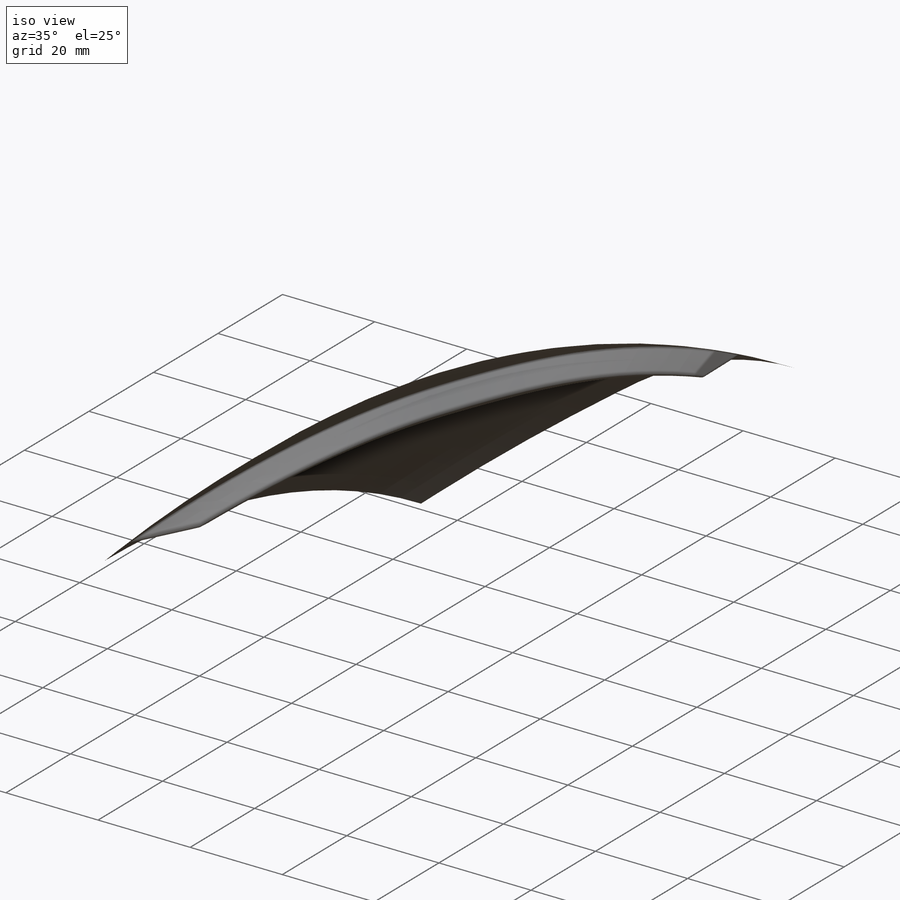
[diagram: iso view]
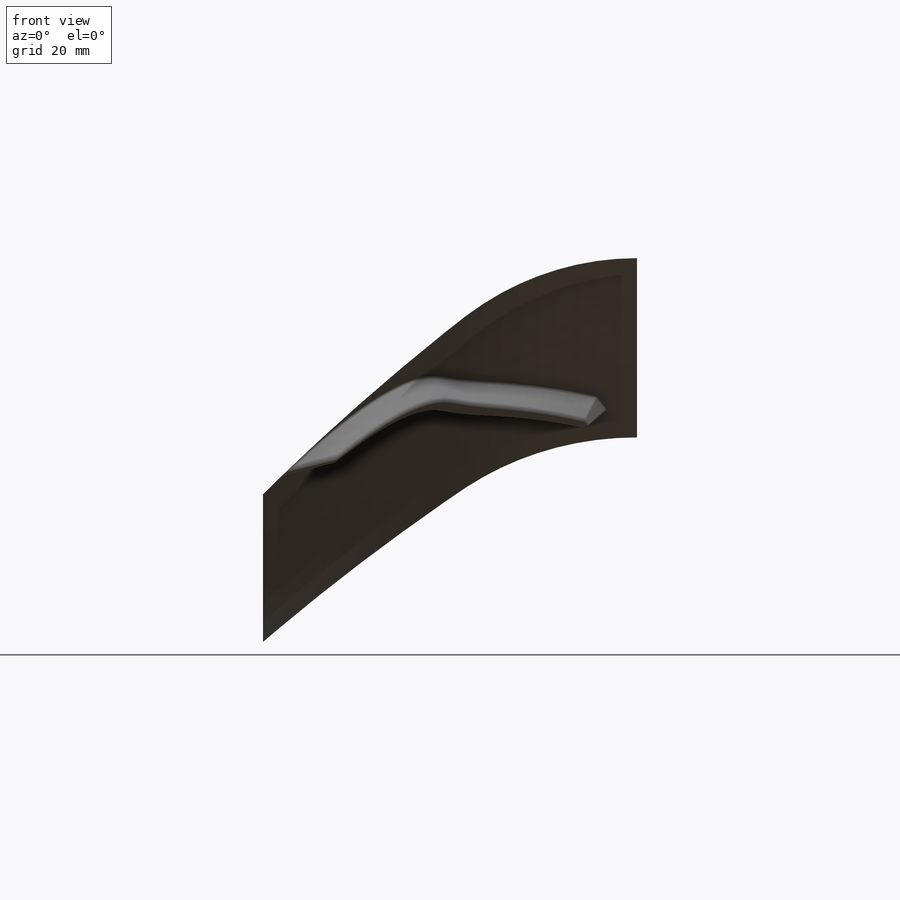
[diagram: front view]
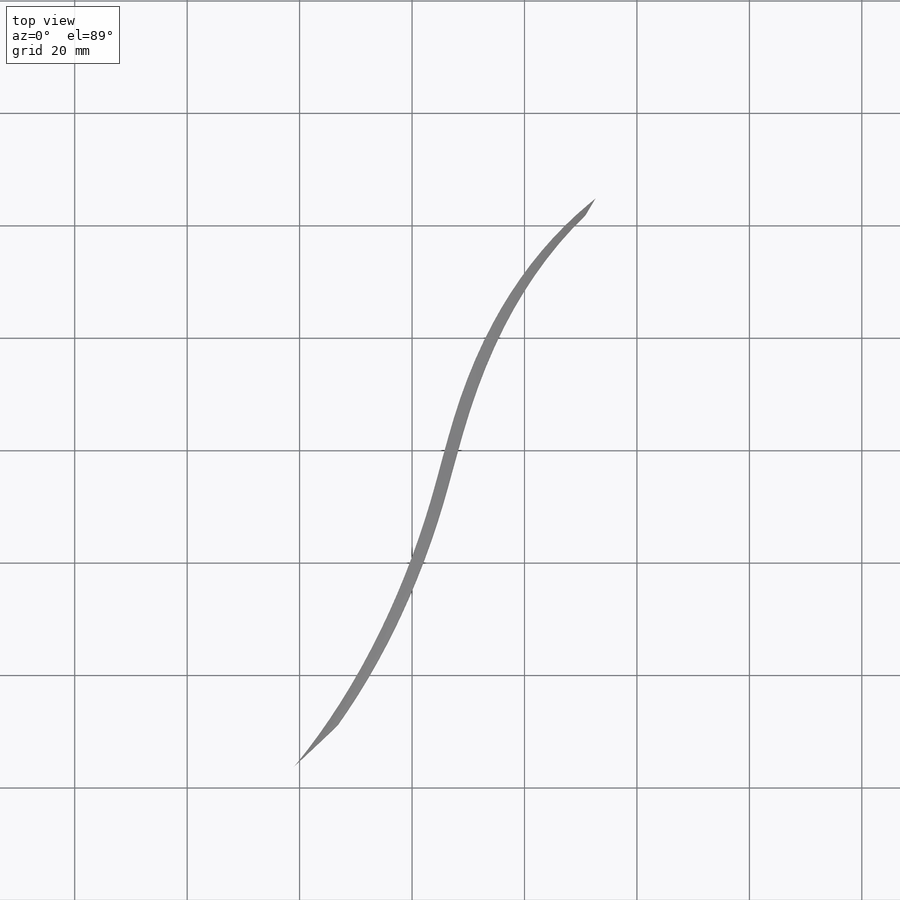
[diagram: top view]
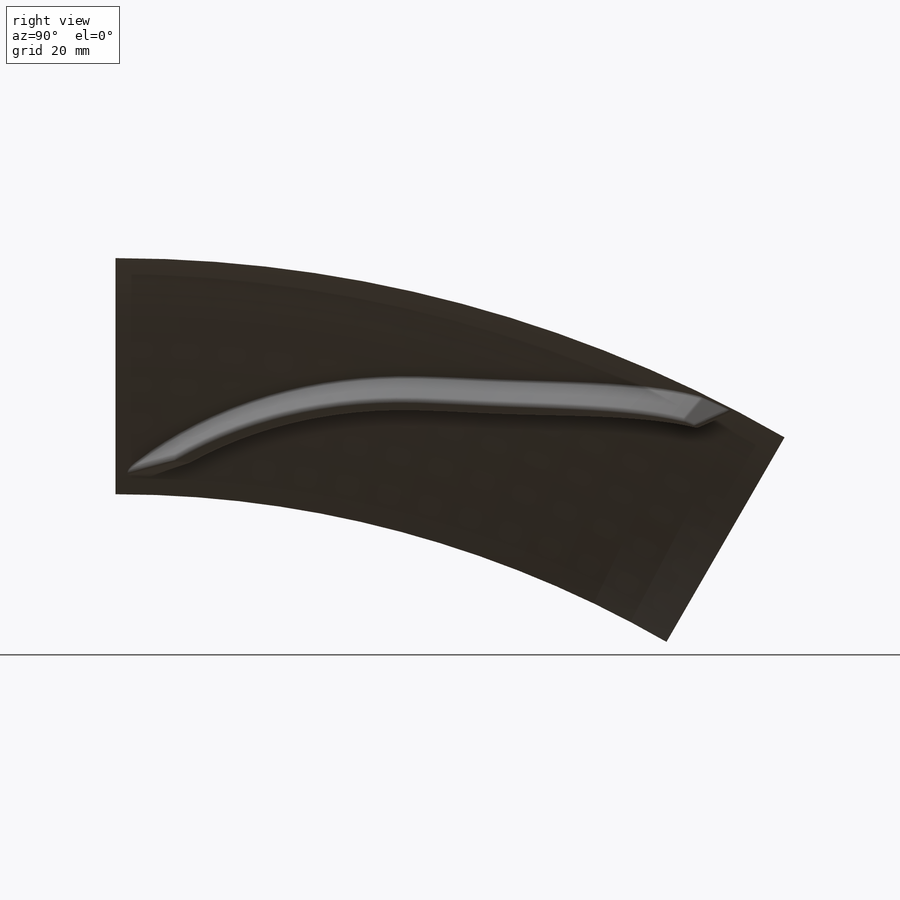
[diagram: right view]
SOLIDWORKS PART (.sldprt)
format: sldprt  version: not decoded by parser v0  size: 1,138,688 bytes
history: native  units: mm
features: sketch x14, plane x5, fillet x3, material x1 + 1 further entry (+17 scaffold rows collapsed; 6 parser-record rows omitted)
feature tree (47):
  scaffold x17  (default folders/planes/origin — collapsed)
  material  "Material <nicht festgelegt>"
  plane  "Ebene vorne"
  plane  "Ebene oben"
  plane  "Ebene rechts"
  "Achse Z"
  sketch  "Querschnitt"  dims[c1.D3=100.0mm c1.D4=42.0mm c1.D9=6.0mm c1.D11=12.5mm c1.D12=12.5mm c2.D9=3.0mm c2.D12=82.0mm c2.D14=140.0mm c2.D2=72.0mm c2.D3=42.0mm c2.D8=12.5mm c3.D9=3.0mm c3.D10=80.0mm c3.D12=140.0mm c3.D6=80.0mm c4.D10=80.0mm c4.D14=39.0mm c4.D15=37.0mm c4.D19=25.0mm c5.D14=18.5mm c5.D2=80.0mm c5.D10=80.0mm c5.D13=24.0mm c6.D14=24.0mm c6.D4=12.5mm c6.D5=3.0mm c6.D13=80.0mm c6.D16=80.0mm c6.D18=21.0mm c6.D23=~51.892583mm c7.D14=52.0mm c7.D35=52.0mm c7.D37=80.0mm c7.D13=80.0mm c7.D12=135.0mm c7.D15=~50.382353mm c7.D16=65.0mm c7.D17=~28.341318mm c7.D18=28.5mm c7.D20=28.0mm c8.D17=28.0mm c8.D13=58.0mm c9.D17=28.5mm c9.D21=126.0mm c9.D10=65.0mm c9.D22=130.0mm c10.D17=126.0mm c10.D39=135.0mm c10.D6=75.0mm c10.D8=29.0mm c10.D12=31.0mm c11.D8=~94.158881mm c11.D13=29.0mm c11.D18=73.0mm c11.D19=73.0mm c12.D18=73.0mm c12.D20=75.0mm c12.D6=50.0mm c12.D7=28.0mm c12.D16=10.0mm c13.D18=20.0mm c13.D23=400.0mm c13.D28=45.0mm c13.D29=600.0mm c13.D1=~342.599447mm c14.D1=~0.630754deg c15.D1=58.0mm c15.D2=333.0mm c15.D3=~579.630868mm c15.D5=65.5mm c15.D6=267.5mm c15.D7=202.0mm c15.D8=40.0mm c15.D10=4.0mm c15.D13=126.0mm c15.D15=40.0mm c15.D16=~23.32702mm c15.D17=22.0mm c15.D19=22.0mm c16.D17=12.0mm c16.D20=~11.335464mm c17.D20=12.0deg c17.D8=80.0mm c17.D17=12.0mm c17.D21=116.0mm c17.D1=350.0mm c17.D4=65.5mm c17.D5=267.5mm c17.D6=202.0mm c17.D7=3.5mm c17.D11=104.0mm c17.D13=68.0mm c17.D14=~23.32702mm c17.D15=22.0mm c17.D16=12.0deg c18.D17=64.0mm c18.D18=12.0mm c18.D19=112.0mm c18.D3=300.0mm c18.D4=241.5mm c18.D5=112.0mm c18.D12=~26.745166mm c18.D13=10.0mm c18.D6=25.0mm c19.D12=~26.745166mm c19.D6=35.0mm c20.D12=~26.745166mm c20.D19=10.0mm c20.D13=10.0mm c21.D19=~102.440083mm c21.D20=~28.107668mm c21.D21=70.0mm c21.D2=349.0mm c21.D3=4.0mm c21.D6=106.0mm c21.D7=12.0deg c21.D8=64.0mm c21.D9=12.0mm c21.D10=288.0mm c21.D11=241.5mm c21.D12=112.0mm c21.D14=35.0mm c21.D15=~26.745166mm c21.D17=10.0mm c21.D23=52.0mm c21.D24=241.5mm c21.D25=300.0mm c21.D26=350.0mm c21.D27=~181.249226mm c21.D28=~18.688625mm c21.D29=~663.920039mm c21.D30=~14.631042mm c21.D31=~672.273457mm c21.D32=~7.855993mm c21.D33=~679.109652mm c21.D34=~646.509668mm c21.D35=~27.127069mm c21.D36=~10.18949mm c21.D37=~77.707038mm c21.D38=~659.701968mm c21.D39=~3.99675mm c21.D40=~662.090948mm c22.D12=104.0mm c22.D8=100.0mm c22.D13=~32.309535mm c22.D14=64.0mm c22.D17=~10.449581mm c22.D15=~13.668721mm c22.D18=~11.436156mm c22.D20=28.0mm c23.D13=58.0mm c23.D17=8.0mm c23.D20=5.0mm c24.D17=9.0mm c24.D20=9.0mm c24.D9=11.0mm c24.D10=~9.600638mm c24.D18=30.0mm c24.D23=298.0mm c24.D24=~73.785103mm c24.D25=319.0mm c24.D26=~8.294401mm c25.D26=~8.021725deg c25.D28=~20.600938mm c25.D29=~105.749663mm c25.D30=~132.507715mm c25.D18=30.0mm c26.D26=~20.399362mm c27.D26=~3.62578deg c27.D17=9.0mm c27.D28=~20.440276mm c27.D29=~7.470887mm c27.D30=~697.977315mm c27.D31=~3.628839mm c27.D32=~695.669564mm c27.D33=~3.885345mm c27.D34=~694.503407mm c27.D35=~9.576838mm c27.D36=~689.357156mm c27.D37=~4.326401mm c27.D38=~687.234807mm c27.D39=~129.617404mm c27.D40=~678.798724mm c28.D29=~10.041407mm c28.D1=132.0mm c28.D10=238.0mm c28.D11=191.0mm c28.D8=89.0mm c28.D14=151.0mm c28.D15=3.0mm c28.D16=128.0mm c28.D17=~41.993846mm c28.D19=6.0mm c28.D20=~35.623026mm c28.D21=~161.37933mm c28.D22=~201.805733mm c28.D27=~181.249226mm c29.D21=~3.770519mm c29.D6=~17.592205mm c29.D3=133.0mm c29.D4=476.0mm c29.D8=32.0mm c29.D9=12.0mm c29.D10=90.0mm c29.D11=120.0mm c29.D12=370.0mm c29.D13=151.0mm c29.D14=~9.838735mm c30.D14=12.0deg c30.D22=4.0mm c30.D19=61.4211mm c30.D20=~41.993846mm c31.D19=61.42mm c31.D24=~10.54248mm c31.D25=214.97mm c31.D26=~315.660162mm c31.D27=~273.202641mm c32.D19=61.42mm c32.D26=~4.134034mm c32.D30=5.0mm c32.D31=4.04mm c33.D30=5.0mm c33.D32=~3.770519mm c33.D21=5.0mm c34.D30=~2.975316mm c34.D20=~23.731447mm c34.D21=~41.151685mm c35.D20=~28.46313mm c35.D21=~72.450655mm c36.D20=~28.547825mm c36.D21=~115.284554mm c36.D28=11.0mm c36.D30=17.5mm c36.D32=6.0mm c36.D35=~5.047825mm c36.D36=8.2mm c36.D37=~38.442277mm c36.D39=4.1mm c36.D13=~102.440083mm c36.D29=1.75mm c36.D31=16.0mm c36.D33=4.0mm c37.D35=12.5mm c37.D37=4.0mm c37.D39=~12.970042mm c37.D20=~192.292721mm c37.D18=8.0mm c37.D6=8.0mm c37.D15=8.0mm c37.D22=8.0mm]
  parser-record x6  (decoder bookkeeping rows leaked as tree rows — omitted from the tree; the rows remain in map.json)
  sketch  "Skizze20"  dims[D1=30.0deg]
  sketch  "Skizze21"  dims[D1=30.0deg]
  sketch  "3D-Skizze620"
  sketch  "3D-Skizze621"
  sketch  "3D-Skizze652"
  sketch  "3D-Skizze653"
  sketch  "3D-Skizze656"
  sketch  "3D-Skizze657"
  sketch  "für Ebene Austragungsbahn 3D-Skizze624"  dims[c1.D1=56.6984mm c2.D1=~62.543956mm c3.D1=~33.182861mm c4.D1=~22.245624mm c5.D1=~57.05856mm c6.D1=~97.748625mm c7.D1=~64.751577deg c7.D3=20.0deg c7.D2=~6.574139mm c8.D1=5.0mm]
  plane  "Ebene Austragungsbahn Rille lang"
  sketch  "Austragungsbahn Leitkurve Rille lang"  dims[c1.D1=~67.85262mm c1.D3=120.0mm c1.D4=100.0mm c1.D9=100.0mm c1.D5=100.0mm c1.D6=85.0mm c1.D11=104.0mm c1.D12=104.0mm c1.D15=96.0mm c1.D22=1.0mm c1.D23=1.0mm c2.D12=1.0mm c2.D24=~0.302424mm c2.D26=~0.283222mm c2.D18=0.5mm c2.D19=3.0mm c2.D30=0.5mm c2.D31=2.0mm c2.D1=6.0mm c2.D2=5.0mm c3.D2=15.0deg c3.D4=~58.847847mm c4.D2=~101.423951mm c5.D2=20.0deg c5.D8=3.0mm c5.D9=~61.453736mm c5.D5=~96.592583mm c5.D10=10.0mm c5.D11=~63.911886mm c5.D12=~100.456286mm c5.D13=~30.535892mm c5.D14=27.0mm c5.D15=~1.266828mm c6.D15=~5.477289deg c7.D15=~14.596826mm c8.D15=9.0deg c8.D16=~1.957124mm c9.D16=4.0deg c9.D14=6.0mm c9.D10=10.0mm c9.D11=~32.262331mm c10.D11=~0.384274deg c11.D11=13.0mm c11.D12=52.0mm c11.D18=6.0mm c11.D19=2.0mm c11.D20=6.2mm c11.D21=5.0mm c11.D10=2.0mm c12.D11=10.0mm c12.D12=22.6997mm c12.D10=4.5mm c13.D12=~9.391084mm c13.D11=5.0mm c14.D12=0.5mm c14.D24=~1.255398mm c14.D25=3.0mm c14.D26=1.8mm c14.D20=0.05mm c14.D27=~0.560104mm c15.D27=22.0deg c15.D20=0.2mm c15.D24=1.6mm c15.D26=~0.658348mm c16.D26=2.0deg c17.D26=~1.916755mm c18.D26=3.0deg c18.D12=1.8mm c18.D27=10.0mm c18.D28=9.5mm c18.D29=~2.244332mm c19.D29=9.0deg c19.D30=~2.230598mm c19.D31=~3.057953mm c19.D32=~6.511138mm c19.D33=~0.155008mm c19.D12=~5.649352mm c19.D4=45.0mm c19.D9=40.0mm c19.D5=45.0mm c19.D11=55.0mm c20.D12=55.0mm c20.D5=4.0mm c20.D6=4.0mm c20.D7=2.25mm c20.D9=2.25mm c20.D14=1.5mm c20.D17=1.5mm]
  sketch  "Austragungsbahn Spline Rille lang"
  sketch  "Leitkurve Spline Rille lang"
  plane  "Ebene Profil Ebene6"
  sketch  "Profil Rille lang"  dims[c1.D1=~5.007586mm c2.D1=~98.415423deg]
  fillet  "Verrundung2"  Radius=0.9mm
  fillet  "Verrundung3"  Radius=1mm
  fillet  "Verrundung4"  Radius=0.5mm
decode coverage: 9 of 17 modeling features carry decoded parameters; 1 rows unclassified (native names shown)
note: ~ marks probable driven/reference dimensions
note: suppression state not decoded; provenance and decode notes live in map.json
